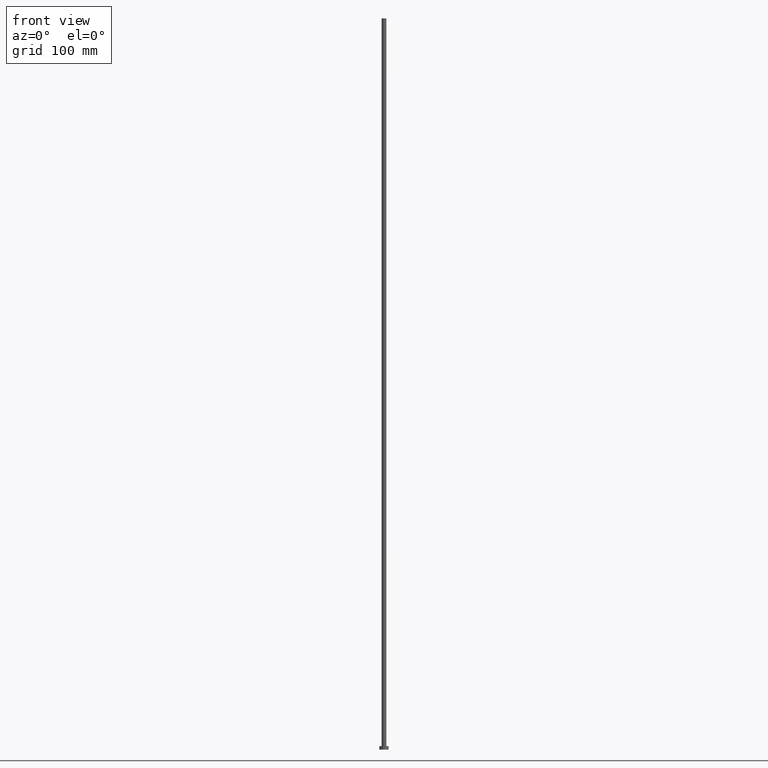
[diagram: clean part render]
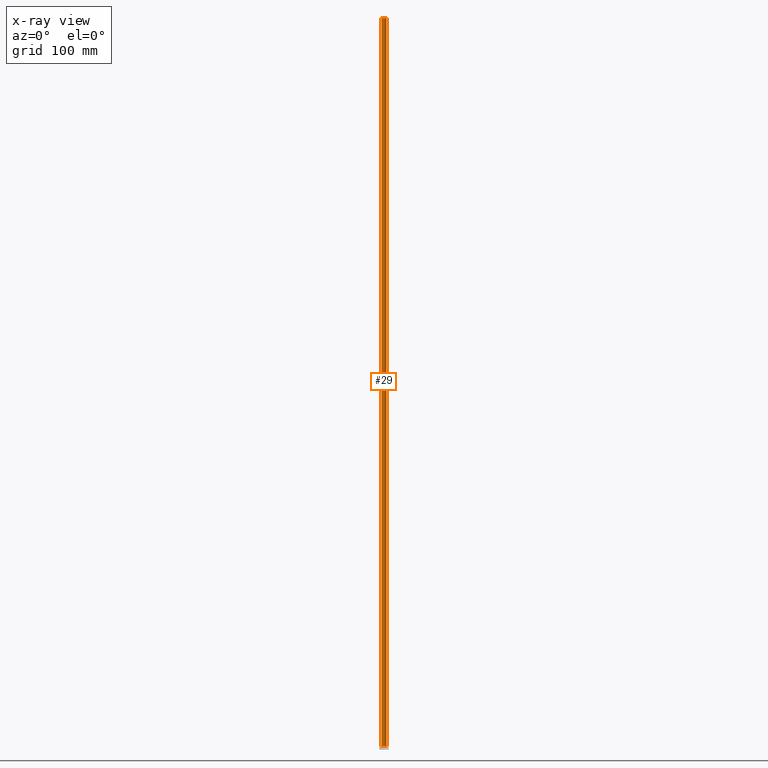
[diagram: x-ray — body ghosted, one internal face saturated and labeled with its STEP entity id]
A machine part, front view, then the same camera in x-ray: the body is ghosted and one INTERNAL B-rep face — a face not visible from any outside direction — is saturated and labeled: STEP entity #29.
In plain terms, the highlighted cylindrical surface (edge-blend (fillet) strip) has radius 2 mm, axis along (-0, -0, -1).
Its self-contained STEP definition (entity closure, byte-faithful):
#6 = VERTEX_POINT ( 'NONE', #226 ) ;
#7 = EDGE_CURVE ( 'NONE', #6, #95, #36, .T. ) ;
#17 = CARTESIAN_POINT ( 'NONE',  ( 0.000000000000000000, 0.000000000000000000, 630.0000000000000000 ) ) ;
#21 = VECTOR ( 'NONE', #168, 1000.000000000000000 ) ;
#23 = ORIENTED_EDGE ( 'NONE', *, *, #150, .F. ) ;
#24 = CIRCLE ( 'NONE', #118, 2.000000000000000000 ) ;
#26 = DIRECTION ( 'NONE',  ( 1.000000000000000000, 0.000000000000000000, 0.000000000000000000 ) ) ;
#28 = VERTEX_POINT ( 'NONE', #245 ) ;
#29 = ADVANCED_FACE ( 'NONE', ( #159 ), #75, .T. ) ;
#36 = CIRCLE ( 'NONE', #176, 2.000000000000000000 ) ;
#39 = AXIS2_PLACEMENT_3D ( 'NONE', #155, #56, #121 ) ;
#40 = CARTESIAN_POINT ( 'NONE',  ( -2.000000000000000000, 0.000000000000000000, 630.0000000000000000 ) ) ;
#56 = DIRECTION ( 'NONE',  ( -0.000000000000000000, -0.000000000000000000, -1.000000000000000000 ) ) ;
#60 = DIRECTION ( 'NONE',  ( 1.000000000000000000, 0.000000000000000000, 0.000000000000000000 ) ) ;
#62 = CARTESIAN_POINT ( 'NONE',  ( -2.000000000000000000, 0.000000000000000000, 3.000000000000000000 ) ) ;
#75 = CYLINDRICAL_SURFACE ( 'NONE', #39, 2.000000000000000000 ) ;
#81 = LINE ( 'NONE', #179, #21 ) ;
#89 = DIRECTION ( 'NONE',  ( -0.000000000000000000, -0.000000000000000000, -1.000000000000000000 ) ) ;
#95 = VERTEX_POINT ( 'NONE', #62 ) ;
#104 = LINE ( 'NONE', #167, #166 ) ;
#111 = EDGE_LOOP ( 'NONE', ( #239, #149, #146, #23 ) ) ;
#118 = AXIS2_PLACEMENT_3D ( 'NONE', #17, #216, #60 ) ;
#121 = DIRECTION ( 'NONE',  ( -1.000000000000000000, 0.000000000000000000, 0.000000000000000000 ) ) ;
#125 = EDGE_CURVE ( 'NONE', #28, #6, #81, .T. ) ;
#128 = CARTESIAN_POINT ( 'NONE',  ( 0.000000000000000000, 0.000000000000000000, 3.000000000000000000 ) ) ;
#133 = VERTEX_POINT ( 'NONE', #40 ) ;
#146 = ORIENTED_EDGE ( 'NONE', *, *, #7, .T. ) ;
#149 = ORIENTED_EDGE ( 'NONE', *, *, #125, .T. ) ;
#150 = EDGE_CURVE ( 'NONE', #133, #95, #104, .T. ) ;
#153 = EDGE_CURVE ( 'NONE', #28, #133, #24, .T. ) ;
#155 = CARTESIAN_POINT ( 'NONE',  ( 0.000000000000000000, 0.000000000000000000, 630.0000000000000000 ) ) ;
#159 = FACE_OUTER_BOUND ( 'NONE', #111, .T. ) ;
#166 = VECTOR ( 'NONE', #89, 1000.000000000000000 ) ;
#167 = CARTESIAN_POINT ( 'NONE',  ( -2.000000000000000000, 0.000000000000000000, 630.0000000000000000 ) ) ;
#168 = DIRECTION ( 'NONE',  ( -0.000000000000000000, -0.000000000000000000, -1.000000000000000000 ) ) ;
#170 = DIRECTION ( 'NONE',  ( 0.000000000000000000, 0.000000000000000000, 1.000000000000000000 ) ) ;
#176 = AXIS2_PLACEMENT_3D ( 'NONE', #128, #170, #26 ) ;
#179 = CARTESIAN_POINT ( 'NONE',  ( 2.000000000000000000, 2.449293598294706414E-16, 630.0000000000000000 ) ) ;
#216 = DIRECTION ( 'NONE',  ( 0.000000000000000000, 0.000000000000000000, 1.000000000000000000 ) ) ;
#226 = CARTESIAN_POINT ( 'NONE',  ( 2.000000000000000000, 2.449293598294706414E-16, 3.000000000000000000 ) ) ;
#239 = ORIENTED_EDGE ( 'NONE', *, *, #153, .F. ) ;
#245 = CARTESIAN_POINT ( 'NONE',  ( 2.000000000000000000, 2.449293598294706414E-16, 630.0000000000000000 ) ) ;